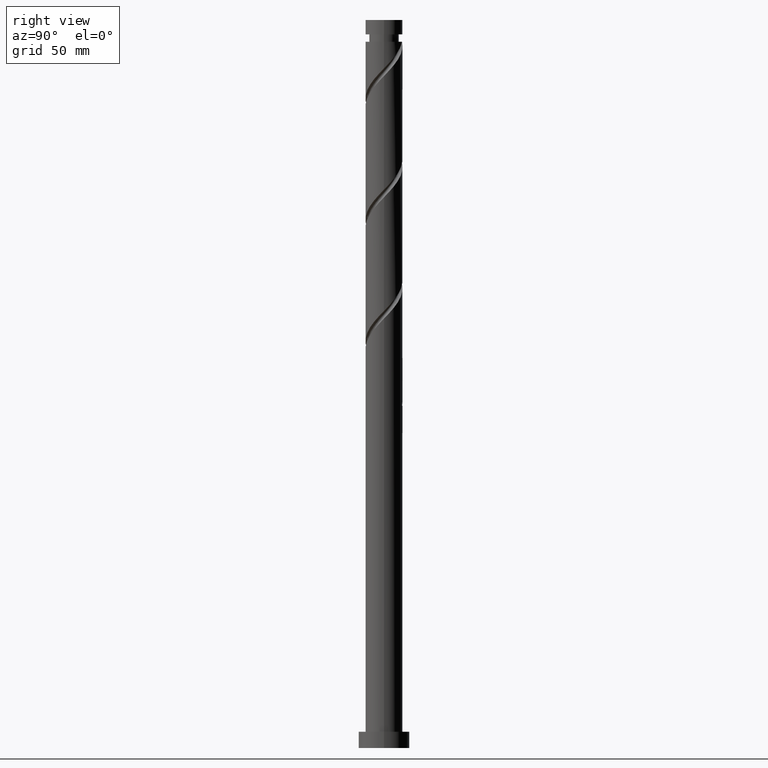
[diagram: clean part render]
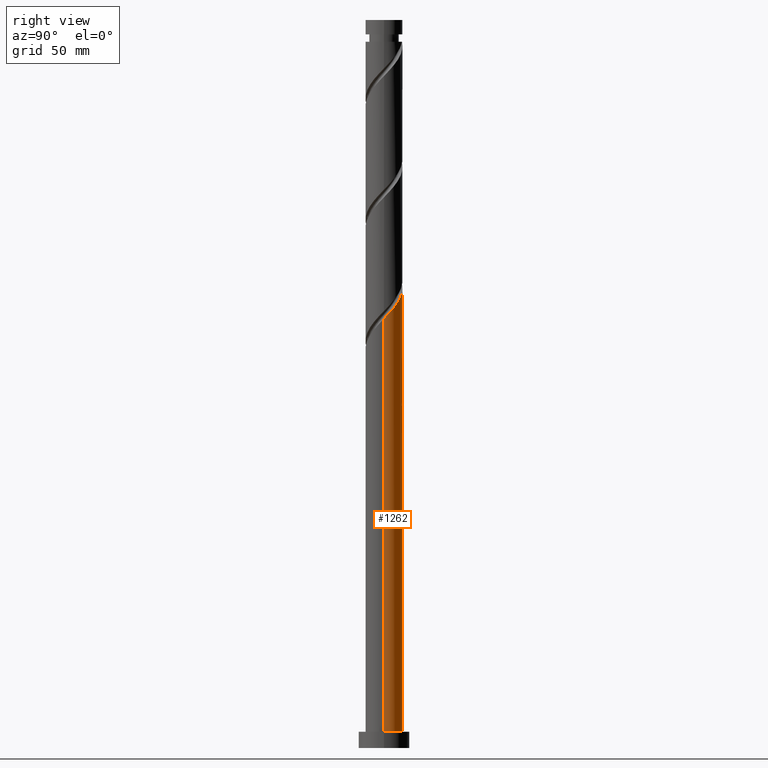
[diagram: same view with one face highlighted and labeled with its STEP entity id]
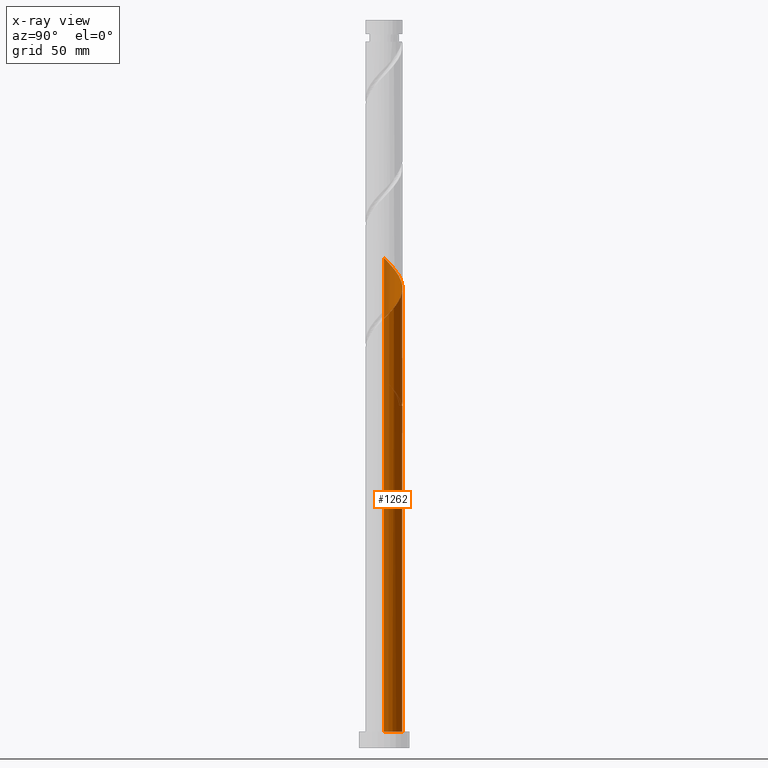
[diagram: x-ray of the same camera — body ghosted, the highlighted face saturated]
A machine part, right view. The second image highlights one B-rep face of the part: STEP entity #1262.
The next image is the same camera in x-ray: the body ghosted, the highlighted face saturated — about 0% of this face is hidden behind the body in this view.
In plain terms, the highlighted cylindrical surface (edge-blend (fillet) strip) has radius 8 mm, axis along (-0, -0, -1).
Its self-contained STEP definition (entity closure, byte-faithful):
#10 = CARTESIAN_POINT ( 'NONE',  ( 7.289185977457886878, 3.296629761746312060, 189.3442742932561487 ) ) ;
#11 = CARTESIAN_POINT ( 'NONE',  ( -2.841027358113521029, 7.532665915805471180, 152.7817742932561202 ) ) ;
#29 = CARTESIAN_POINT ( 'NONE',  ( -5.554021909376833932, 5.827978455592415230, 205.2817742932561202 ) ) ;
#30 = CARTESIAN_POINT ( 'NONE',  ( -1.093621015931127038, 7.975994315582275007, 150.9067742932561202 ) ) ;
#60 = EDGE_LOOP ( 'NONE', ( #290, #1632, #1790, #807, #1283, #1099, #1764, #863 ) ) ;
#69 = CARTESIAN_POINT ( 'NONE',  ( -8.000000000000000000, 0.000000000000000000, 315.0000000000000000 ) ) ;
#104 = DIRECTION ( 'NONE',  ( -0.000000000000000000, -0.000000000000000000, -1.000000000000000000 ) ) ;
#120 = CARTESIAN_POINT ( 'NONE',  ( -6.132820051356697277, 5.136975590527704583, 153.7192742932561487 ) ) ;
#122 = EDGE_CURVE ( 'NONE', #193, #710, #1107, .T. ) ;
#139 = CARTESIAN_POINT ( 'NONE',  ( -7.122142054571023451, 3.643500041788262589, 155.5942742932561202 ) ) ;
#152 = CARTESIAN_POINT ( 'NONE',  ( 4.445972725462999264, 6.711618193336562399, 194.0317742932561487 ) ) ;
#155 = DIRECTION ( 'NONE',  ( 0.000000000000000000, -0.000000000000000000, -1.000000000000000000 ) ) ;
#160 = CARTESIAN_POINT ( 'NONE',  ( -4.835972842340994227, 6.372861733016070396, 204.3442742932561202 ) ) ;
#169 = CARTESIAN_POINT ( 'NONE',  ( 6.917745010439728226, 4.117923775305156298, 190.2817742932561487 ) ) ;
#190 = CARTESIAN_POINT ( 'NONE',  ( -5.827978455592401019, 5.554021909376823274, 156.5317742932561202 ) ) ;
#193 = VERTEX_POINT ( 'NONE', #352 ) ;
#211 = VECTOR ( 'NONE', #1223, 1000.000000000000000 ) ;
#229 = DIRECTION ( 'NONE',  ( -1.000000000000000000, 0.000000000000000000, 0.000000000000000000 ) ) ;
#239 = DIRECTION ( 'NONE',  ( -1.000000000000000000, 0.000000000000000000, 0.000000000000000000 ) ) ;
#242 = VERTEX_POINT ( 'NONE', #1130 ) ;
#290 = ORIENTED_EDGE ( 'NONE', *, *, #1095, .F. ) ;
#295 = CARTESIAN_POINT ( 'NONE',  ( -1.591979899370593809, 7.840000000000014957, 148.0942742932561487 ) ) ;
#298 = CARTESIAN_POINT ( 'NONE',  ( 6.372861733016072172, 4.835972842340994227, 191.2192742932561202 ) ) ;
#310 = CARTESIAN_POINT ( 'NONE',  ( -1.591979899370594032, 7.840000000000014069, 200.5942742932561487 ) ) ;
#320 = LINE ( 'NONE', #1484, #211 ) ;
#330 = CARTESIAN_POINT ( 'NONE',  ( -7.289185977457871779, 3.296629761746307619, 159.3442742932561202 ) ) ;
#340 = CARTESIAN_POINT ( 'NONE',  ( -6.917745010439714015, 4.117923775305150080, 158.4067742932561487 ) ) ;
#352 = CARTESIAN_POINT ( 'NONE',  ( -8.000000000000012434, 3.432927909951034550E-16, 159.5447572153500744 ) ) ;
#397 = CARTESIAN_POINT ( 'NONE',  ( 0.000000000000000000, 0.000000000000000000, 7.000000000000000000 ) ) ;
#445 = CARTESIAN_POINT ( 'NONE',  ( 7.660626944476046418, 2.475335748187466489, 188.4067742932562055 ) ) ;
#449 = LINE ( 'NONE', #1767, #709 ) ;
#454 = CARTESIAN_POINT ( 'NONE',  ( 0.1924984826887057021, 7.997683685553133692, 198.7192742932561487 ) ) ;
#515 = CARTESIAN_POINT ( 'NONE',  ( -8.000000000000000000, 0.000000000000000000, 7.000000000000000000 ) ) ;
#522 = CARTESIAN_POINT ( 'NONE',  ( -7.975994315582287442, 1.093621015931130813, 210.9067742932561771 ) ) ;
#526 = CIRCLE ( 'NONE', #1926, 8.000000000000000000 ) ;
#588 = CARTESIAN_POINT ( 'NONE',  ( 8.000000000000015987, 0.8040302522073620173, 186.6330282943136751 ) ) ;
#589 = CARTESIAN_POINT ( 'NONE',  ( -0.1924984826887015665, 7.997683685553119481, 149.9692742932561487 ) ) ;
#596 = CARTESIAN_POINT ( 'NONE',  ( 2.841027358113530799, 7.532665915805486279, 195.9067742932561202 ) ) ;
#597 = CARTESIAN_POINT ( 'NONE',  ( -1.967324187022324145, 7.754330115693871761, 151.8442742932561771 ) ) ;
#606 = CARTESIAN_POINT ( 'NONE',  ( -4.117923775305158074, 6.917745010439726450, 203.4067742932561771 ) ) ;
#610 = VERTEX_POINT ( 'NONE', #1667 ) ;
#617 = CARTESIAN_POINT ( 'NONE',  ( -6.132820051356697277, 5.136975590527704583, 206.2192742932561771 ) ) ;
#630 = CARTESIAN_POINT ( 'NONE',  ( 1.591979899370595808, 7.839999999999998082, 148.0942742932561487 ) ) ;
#636 = EDGE_CURVE ( 'NONE', #1915, #610, #320, .T. ) ;
#654 = CARTESIAN_POINT ( 'NONE',  ( -7.997683685553133692, 0.1924984826887037315, 211.8442742932562055 ) ) ;
#664 = FACE_OUTER_BOUND ( 'NONE', #60, .T. ) ;
#666 = EDGE_CURVE ( 'NONE', #610, #1652, #872, .T. ) ;
#680 = CIRCLE ( 'NONE', #835, 8.000000000000000000 ) ;
#690 = DIRECTION ( 'NONE',  ( -0.000000000000000000, -0.000000000000000000, -1.000000000000000000 ) ) ;
#709 = VECTOR ( 'NONE', #104, 1000.000000000000000 ) ;
#710 = VERTEX_POINT ( 'NONE', #515 ) ;
#714 = CARTESIAN_POINT ( 'NONE',  ( -2.475335748187468266, 7.660626944476046418, 149.0317742932561202 ) ) ;
#732 = CARTESIAN_POINT ( 'NONE',  ( -7.532665915805486279, 2.841027358113528578, 156.5317742932561771 ) ) ;
#742 = CARTESIAN_POINT ( 'NONE',  ( 1.967324187022330584, 7.754330115693885972, 196.8442742932561202 ) ) ;
#752 = CARTESIAN_POINT ( 'NONE',  ( 3.643500041788263033, 7.122142054571023451, 194.9692742932561202 ) ) ;
#762 = CARTESIAN_POINT ( 'NONE',  ( -6.372861733016056185, 4.835972842340986233, 157.4692742932561202 ) ) ;
#807 = ORIENTED_EDGE ( 'NONE', *, *, #122, .F. ) ;
#830 = CARTESIAN_POINT ( 'NONE',  ( 0.000000000000000000, 0.000000000000000000, 148.0942742932561771 ) ) ;
#835 = AXIS2_PLACEMENT_3D ( 'NONE', #830, #155, #239 ) ;
#842 = DIRECTION ( 'NONE',  ( 1.000000000000000000, 0.000000000000000000, 0.000000000000000000 ) ) ;
#863 = ORIENTED_EDGE ( 'NONE', *, *, #636, .F. ) ;
#872 =( BOUNDED_CURVE ( )  B_SPLINE_CURVE ( 2, ( #1658, #1346, #1355, #1204, #330, #340, #762, #190, #1649, #1523, #1786, #11, #597, #30, #589, #1797, #1512 ),
 .UNSPECIFIED., .F., .T. ) 
 B_SPLINE_CURVE_WITH_KNOTS ( ( 3, 2, 2, 2, 2, 2, 2, 2, 3 ),
 ( 0.9295303401299221946, 0.9375000000000000000, 0.9464285714285713969, 0.9553571428571429047, 0.9642857142857143016, 0.9732142857142856984, 0.9821428571428570953, 0.9910714285714286031, 1.000000000000000000 ),
 .UNSPECIFIED. ) 
 CURVE ( )  GEOMETRIC_REPRESENTATION_ITEM ( )  RATIONAL_B_SPLINE_CURVE ( ( 0.9079949616361914222, 0.9039886423360548040, 0.9090909090909213841, 0.9033747362665963676, 0.9090909090909213841, 0.9033747362665963676, 0.9090909090909213841, 0.9033747362665963676, 0.9090909090909213841, 0.9033747362665963676, 0.9090909090909213841, 0.9033747362665963676, 0.9090909090909213841, 0.9033747362665963676, 0.9090909090909213841, 0.9033747362665963676, 0.9090909090909213841 ) ) 
 REPRESENTATION_ITEM ( '' )  );
#885 = CARTESIAN_POINT ( 'NONE',  ( -4.835972842340994227, 6.372861733016070396, 151.8442742932561487 ) ) ;
#888 = CARTESIAN_POINT ( 'NONE',  ( 5.827978455592415230, 5.554021909376831267, 192.1567742932561202 ) ) ;
#897 = CARTESIAN_POINT ( 'NONE',  ( -8.000000000000012434, 3.432927909951034550E-16, 212.0447572153501028 ) ) ;
#985 = DIRECTION ( 'NONE',  ( 0.000000000000000000, 0.000000000000000000, 1.000000000000000000 ) ) ;
#1041 = CARTESIAN_POINT ( 'NONE',  ( -8.000000000000014211, 0.09626317733114025943, 159.4443945271250129 ) ) ;
#1095 = EDGE_CURVE ( 'NONE', #1644, #1915, #1781, .T. ) ;
#1099 = ORIENTED_EDGE ( 'NONE', *, *, #1499, .T. ) ;
#1104 = CARTESIAN_POINT ( 'NONE',  ( -8.000000000000012434, 0.09626317733112421671, 211.9443945271250129 ) ) ;
#1107 = LINE ( 'NONE', #69, #1513 ) ;
#1130 = CARTESIAN_POINT ( 'NONE',  ( -1.591979899370593809, 7.840000000000014957, 148.0942742932561487 ) ) ;
#1171 = CARTESIAN_POINT ( 'NONE',  ( -5.554021909376833932, 5.827978455592415230, 152.7817742932561202 ) ) ;
#1204 = CARTESIAN_POINT ( 'NONE',  ( -7.660626944476032207, 2.475335748187464713, 160.2817742932561487 ) ) ;
#1213 = CARTESIAN_POINT ( 'NONE',  ( -6.711618193336565064, 4.445972725462997488, 207.1567742932561771 ) ) ;
#1223 = DIRECTION ( 'NONE',  ( -0.000000000000000000, -0.000000000000000000, -1.000000000000000000 ) ) ;
#1259 = CARTESIAN_POINT ( 'NONE',  ( -7.754330115693885972, 1.967324187022329030, 209.9692742932560918 ) ) ;
#1262 = ADVANCED_FACE ( 'NONE', ( #664 ), #1844, .T. ) ;
#1283 = ORIENTED_EDGE ( 'NONE', *, *, #1846, .F. ) ;
#1296 = EDGE_CURVE ( 'NONE', #1644, #1613, #449, .T. ) ;
#1323 = CARTESIAN_POINT ( 'NONE',  ( -7.754330115693885972, 1.967324187022329030, 157.4692742932561202 ) ) ;
#1346 = CARTESIAN_POINT ( 'NONE',  ( -7.999999999999994671, 0.8040302522073827785, 162.0555202921985654 ) ) ;
#1354 = CARTESIAN_POINT ( 'NONE',  ( -3.296629761746312948, 7.289185977457886878, 202.4692742932561202 ) ) ;
#1355 = CARTESIAN_POINT ( 'NONE',  ( -7.839999999999999858, 1.591979899370594476, 161.2192742932561202 ) ) ;
#1374 = CARTESIAN_POINT ( 'NONE',  ( -7.532665915805486279, 2.841027358113528578, 209.0317742932561487 ) ) ;
#1383 = CARTESIAN_POINT ( 'NONE',  ( -7.122142054571023451, 3.643500041788262589, 208.0942742932561771 ) ) ;
#1393 = AXIS2_PLACEMENT_3D ( 'NONE', #1559, #1675, #229 ) ;
#1471 = CARTESIAN_POINT ( 'NONE',  ( -6.711618193336565064, 4.445972725462997488, 154.6567742932561771 ) ) ;
#1480 = CARTESIAN_POINT ( 'NONE',  ( -8.000000000000012434, 3.432927909951034550E-16, 159.5447572153500744 ) ) ;
#1482 = CARTESIAN_POINT ( 'NONE',  ( 5.136975590527704583, 6.132820051356695501, 193.0942742932561487 ) ) ;
#1484 = CARTESIAN_POINT ( 'NONE',  ( -8.000000000000000000, 0.000000000000000000, 315.0000000000000000 ) ) ;
#1494 = CARTESIAN_POINT ( 'NONE',  ( -2.475335748187468266, 7.660626944476046418, 201.5317742932561487 ) ) ;
#1499 = EDGE_CURVE ( 'NONE', #242, #1652, #680, .T. ) ;
#1512 = CARTESIAN_POINT ( 'NONE',  ( 1.591979899370595808, 7.839999999999998082, 148.0942742932561487 ) ) ;
#1513 = VECTOR ( 'NONE', #690, 1000.000000000000000 ) ;
#1523 = CARTESIAN_POINT ( 'NONE',  ( -4.445972725462986830, 6.711618193336551741, 154.6567742932561487 ) ) ;
#1549 = CARTESIAN_POINT ( 'NONE',  ( -8.000000000000012434, 3.432927909951034550E-16, 212.0447572153501028 ) ) ;
#1559 = CARTESIAN_POINT ( 'NONE',  ( 0.000000000000000000, 0.000000000000000000, 315.0000000000000000 ) ) ;
#1563 = EDGE_CURVE ( 'NONE', #1613, #710, #526, .T. ) ;
#1613 = VERTEX_POINT ( 'NONE', #1736 ) ;
#1632 = ORIENTED_EDGE ( 'NONE', *, *, #1296, .T. ) ;
#1634 = CARTESIAN_POINT ( 'NONE',  ( -3.296629761746312948, 7.289185977457886878, 149.9692742932561202 ) ) ;
#1637 = CARTESIAN_POINT ( 'NONE',  ( -0.7086240505537219070, 8.019373055523979943, 199.6567742932561771 ) ) ;
#1643 = CARTESIAN_POINT ( 'NONE',  ( 8.000000000000012434, -1.567206219760254689E-15, 185.7947572153500460 ) ) ;
#1644 = VERTEX_POINT ( 'NONE', #1643 ) ;
#1649 = CARTESIAN_POINT ( 'NONE',  ( -5.136975590527696589, 6.132820051356685731, 155.5942742932561202 ) ) ;
#1652 = VERTEX_POINT ( 'NONE', #630 ) ;
#1658 = CARTESIAN_POINT ( 'NONE',  ( -7.999999999999998224, 1.895573237233846972E-15, 162.8937913711621661 ) ) ;
#1667 = CARTESIAN_POINT ( 'NONE',  ( -7.999999999999998224, 1.895573237233846972E-15, 162.8937913711621661 ) ) ;
#1675 = DIRECTION ( 'NONE',  ( -0.000000000000000000, -0.000000000000000000, -1.000000000000000000 ) ) ;
#1736 = CARTESIAN_POINT ( 'NONE',  ( 8.000000000000000000, 9.797174393178825657E-16, 7.000000000000000000 ) ) ;
#1744 = CARTESIAN_POINT ( 'NONE',  ( -4.117923775305158074, 6.917745010439726450, 150.9067742932561771 ) ) ;
#1764 = ORIENTED_EDGE ( 'NONE', *, *, #666, .F. ) ;
#1767 = CARTESIAN_POINT ( 'NONE',  ( 8.000000000000000000, 9.797174393178825657E-16, 315.0000000000000000 ) ) ;
#1773 = CARTESIAN_POINT ( 'NONE',  ( 7.840000000000014069, 1.591979899370594476, 187.4692742932561487 ) ) ;
#1780 = CARTESIAN_POINT ( 'NONE',  ( -7.975994315582287442, 1.093621015931130813, 158.4067742932561202 ) ) ;
#1781 =( BOUNDED_CURVE ( )  B_SPLINE_CURVE ( 2, ( #1925, #588, #1773, #445, #10, #169, #298, #888, #1482, #152, #752, #596, #742, #1785, #454, #1637, #310, #1494, #1354, #606, #160, #29, #617, #1213, #1383, #1374, #1259, #522, #654, #1104, #1549 ),
 .UNSPECIFIED., .F., .T. ) 
 B_SPLINE_CURVE_WITH_KNOTS ( ( 3, 2, 2, 2, 2, 2, 2, 2, 2, 2, 2, 2, 2, 2, 2, 3 ),
 ( 0.1795303401299220003, 0.1875000000000000000, 0.1964285714285713969, 0.2053571428571429047, 0.2142857142857143016, 0.2232142857142856984, 0.2321428571428570953, 0.2410714285714286031, 0.2500000000000000000, 0.2589285714285713969, 0.2678571428571429047, 0.2767857142857143016, 0.2857142857142856984, 0.2946428571428570953, 0.3035714285714286031, 0.3045303401299220836 ),
 .UNSPECIFIED. ) 
 CURVE ( )  GEOMETRIC_REPRESENTATION_ITEM ( )  RATIONAL_B_SPLINE_CURVE ( ( 0.9079949616361987497, 0.9039886423360617984, 0.9090909090909286006, 0.9033747362666035841, 0.9090909090909286006, 0.9033747362666035841, 0.9090909090909286006, 0.9033747362666035841, 0.9090909090909286006, 0.9033747362666035841, 0.9090909090909286006, 0.9033747362666035841, 0.9090909090909286006, 0.9033747362666035841, 0.9090909090909286006, 0.9033747362666035841, 0.9090909090909286006, 0.9033747362666035841, 0.9090909090909286006, 0.9033747362666035841, 0.9090909090909286006, 0.9033747362666035841, 0.9090909090909286006, 0.9033747362666035841, 0.9090909090909286006, 0.9033747362666035841, 0.9090909090909286006, 0.9033747362666035841, 0.9090909090909286006, 0.9084770030214703862, 0.9079949616361987497 ) ) 
 REPRESENTATION_ITEM ( '' )  );
#1785 = CARTESIAN_POINT ( 'NONE',  ( 1.093621015931132368, 7.975994315582287442, 197.7817742932561771 ) ) ;
#1786 = CARTESIAN_POINT ( 'NONE',  ( -3.643500041788253707, 7.122142054571010128, 153.7192742932561487 ) ) ;
#1790 = ORIENTED_EDGE ( 'NONE', *, *, #1563, .T. ) ;
#1797 = CARTESIAN_POINT ( 'NONE',  ( 0.7086240505537235723, 8.019373055523965732, 149.0317742932561487 ) ) ;
#1844 = CYLINDRICAL_SURFACE ( 'NONE', #1393, 8.000000000000000000 ) ;
#1846 = EDGE_CURVE ( 'NONE', #242, #193, #1899, .T. ) ;
#1893 = CARTESIAN_POINT ( 'NONE',  ( -7.997683685553133692, 0.1924984826887037315, 159.3442742932561487 ) ) ;
#1899 =( BOUNDED_CURVE ( )  B_SPLINE_CURVE ( 2, ( #295, #714, #1634, #1744, #885, #1171, #120, #1471, #139, #732, #1323, #1780, #1893, #1041, #1480 ),
 .UNSPECIFIED., .F., .T. ) 
 B_SPLINE_CURVE_WITH_KNOTS ( ( 3, 2, 2, 2, 2, 2, 2, 3 ),
 ( 0.000000000000000000, 0.008928571428571396851, 0.01785714285714290472, 0.02678571428571430504, 0.03571428571428569843, 0.04464285714285709528, 0.05357142857142861009, 0.05453034012992192398 ),
 .UNSPECIFIED. ) 
 CURVE ( )  GEOMETRIC_REPRESENTATION_ITEM ( )  RATIONAL_B_SPLINE_CURVE ( ( 0.9090909090909286006, 0.9033747362666035841, 0.9090909090909286006, 0.9033747362666035841, 0.9090909090909286006, 0.9033747362666035841, 0.9090909090909286006, 0.9033747362666035841, 0.9090909090909286006, 0.9033747362666035841, 0.9090909090909286006, 0.9033747362666035841, 0.9090909090909286006, 0.9084770030214704972, 0.9079949616361989717 ) ) 
 REPRESENTATION_ITEM ( '' )  );
#1915 = VERTEX_POINT ( 'NONE', #897 ) ;
#1925 = CARTESIAN_POINT ( 'NONE',  ( 8.000000000000012434, -1.567206219760254689E-15, 185.7947572153500460 ) ) ;
#1926 = AXIS2_PLACEMENT_3D ( 'NONE', #397, #985, #842 ) ;